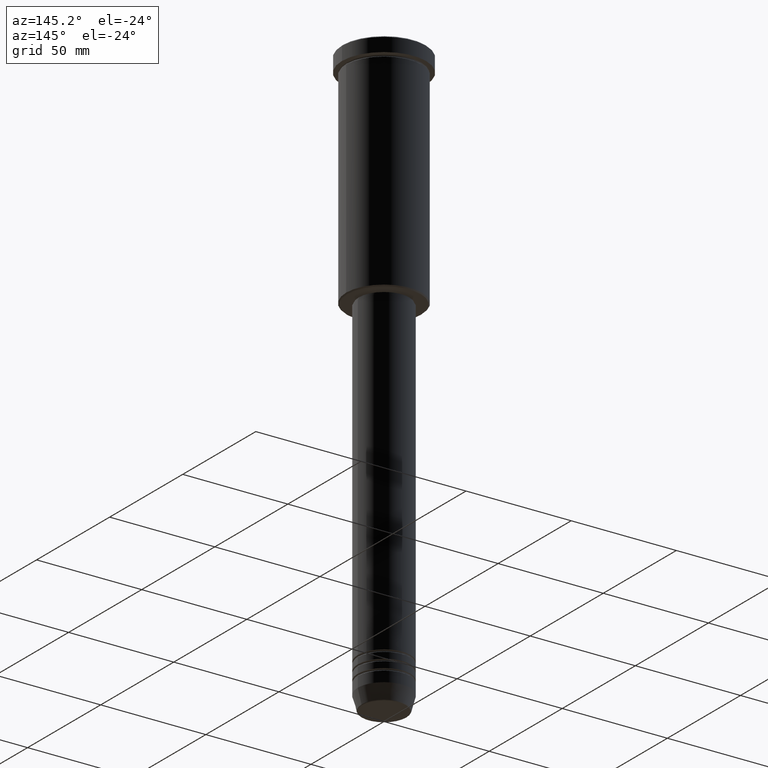
[diagram: clean part render]
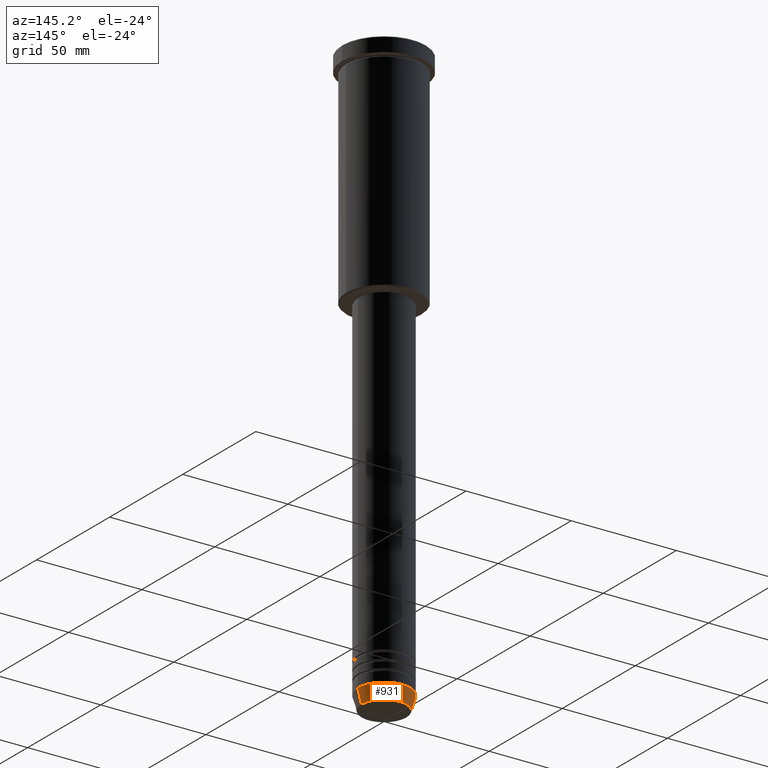
[diagram: same view with one face highlighted and labeled with its STEP entity id]
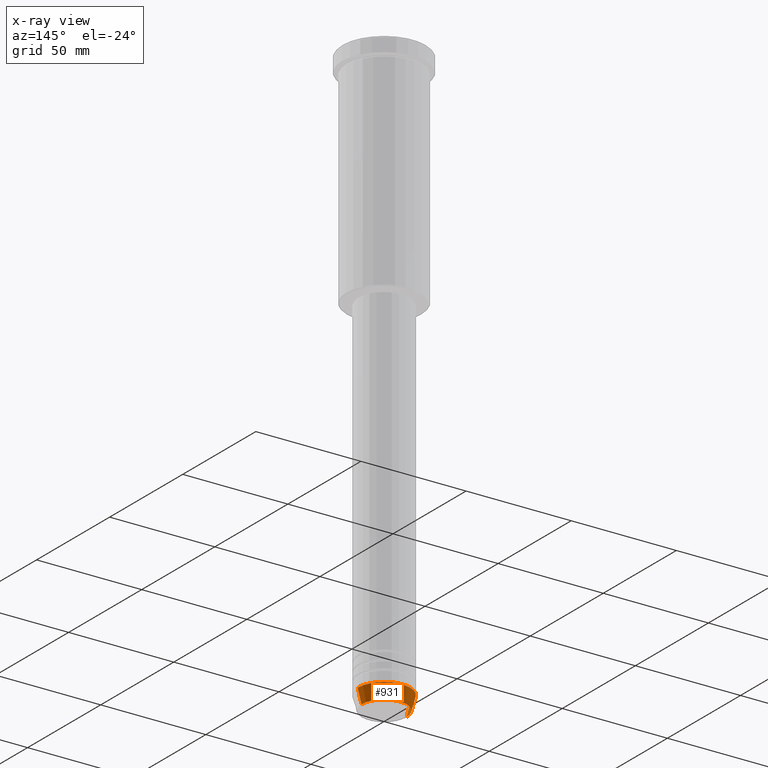
[diagram: x-ray of the same camera — body ghosted, the highlighted face saturated]
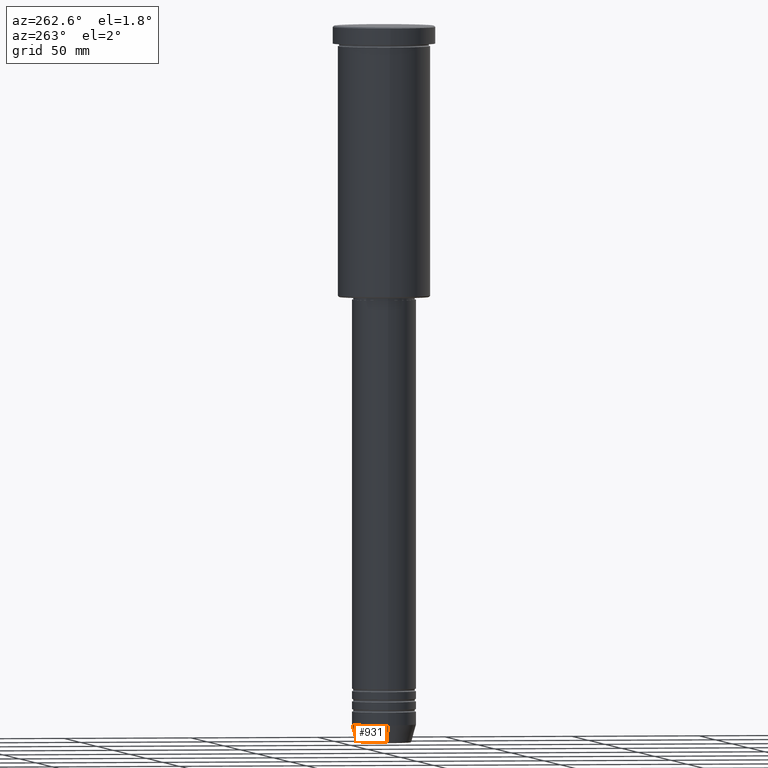
[diagram: same view with one face highlighted and labeled with its STEP entity id]
A machine part, auxiliary view. The second image highlights one B-rep face of the part: STEP entity #931.
The next image is the same camera in x-ray: the body ghosted, the highlighted face saturated — about 0% of this face is hidden behind the body in this view.
A second angle (auxiliary view) of the same face is appended — the face is thin or edge-on in the first view.
In plain terms, the highlighted conical surface has half-angle 15 deg.
Its self-contained STEP definition (entity closure, byte-faithful):
#88 = ORIENTED_EDGE ( 'NONE', *, *, #1113, .T. ) ;
#141 = CARTESIAN_POINT ( 'NONE',  ( 0.000000000000000000, 0.000000000000000000, -273.0000000000000000 ) ) ;
#258 = DIRECTION ( 'NONE',  ( -0.000000000000000000, -0.000000000000000000, 1.000000000000000000 ) ) ;
#259 = DIRECTION ( 'NONE',  ( 1.000000000000000000, 0.000000000000000000, 0.000000000000000000 ) ) ;
#286 = CARTESIAN_POINT ( 'NONE',  ( 10.72365507213719127, 0.000000000000000000, -279.6294095225512706 ) ) ;
#318 = EDGE_LOOP ( 'NONE', ( #897, #88, #364, #375 ) ) ;
#326 = DIRECTION ( 'NONE',  ( -0.000000000000000000, -0.000000000000000000, 1.000000000000000000 ) ) ;
#335 = DIRECTION ( 'NONE',  ( 1.000000000000000000, 0.000000000000000000, 0.000000000000000000 ) ) ;
#337 = CARTESIAN_POINT ( 'NONE',  ( 0.000000000000000000, 0.000000000000000000, -279.6294095225512706 ) ) ;
#364 = ORIENTED_EDGE ( 'NONE', *, *, #912, .F. ) ;
#375 = ORIENTED_EDGE ( 'NONE', *, *, #559, .F. ) ;
#388 = VERTEX_POINT ( 'NONE', #468 ) ;
#399 = DIRECTION ( 'NONE',  ( 0.2588190451025213501, 0.000000000000000000, 0.9659258262890680902 ) ) ;
#468 = CARTESIAN_POINT ( 'NONE',  ( -10.72365507213719127, 1.422038742429750516E-15, -279.6294095225512706 ) ) ;
#472 = AXIS2_PLACEMENT_3D ( 'NONE', #337, #1067, #259 ) ;
#483 = VERTEX_POINT ( 'NONE', #1046 ) ;
#523 = CARTESIAN_POINT ( 'NONE',  ( 0.000000000000000000, 0.000000000000000000, -273.0000000000000000 ) ) ;
#528 = CIRCLE ( 'NONE', #856, 12.50000000000000000 ) ;
#559 = EDGE_CURVE ( 'NONE', #1092, #1034, #579, .T. ) ;
#579 = LINE ( 'NONE', #956, #975 ) ;
#590 = EDGE_CURVE ( 'NONE', #1092, #388, #614, .T. ) ;
#600 = AXIS2_PLACEMENT_3D ( 'NONE', #141, #258, #986 ) ;
#614 = CIRCLE ( 'NONE', #472, 10.72365507213719127 ) ;
#781 = FACE_OUTER_BOUND ( 'NONE', #318, .T. ) ;
#834 = VECTOR ( 'NONE', #903, 1000.000000000000000 ) ;
#856 = AXIS2_PLACEMENT_3D ( 'NONE', #523, #326, #335 ) ;
#897 = ORIENTED_EDGE ( 'NONE', *, *, #590, .T. ) ;
#903 = DIRECTION ( 'NONE',  ( -0.2588190451025213501, 3.169619151431772337E-17, 0.9659258262890680902 ) ) ;
#912 = EDGE_CURVE ( 'NONE', #1034, #483, #528, .T. ) ;
#931 = ADVANCED_FACE ( 'NONE', ( #781 ), #1032, .T. ) ;
#956 = CARTESIAN_POINT ( 'NONE',  ( 12.50000000000000000, 0.000000000000000000, -273.0000000000000000 ) ) ;
#975 = VECTOR ( 'NONE', #399, 1000.000000000000000 ) ;
#986 = DIRECTION ( 'NONE',  ( 1.000000000000000000, 0.000000000000000000, 0.000000000000000000 ) ) ;
#1032 = CONICAL_SURFACE ( 'NONE', #600, 12.50000000000000000, 0.2617993877991500740 ) ;
#1034 = VERTEX_POINT ( 'NONE', #1080 ) ;
#1046 = CARTESIAN_POINT ( 'NONE',  ( -12.50000000000000000, 1.530808498934191521E-15, -273.0000000000000000 ) ) ;
#1067 = DIRECTION ( 'NONE',  ( -0.000000000000000000, -0.000000000000000000, 1.000000000000000000 ) ) ;
#1075 = CARTESIAN_POINT ( 'NONE',  ( -12.50000000000000000, 1.530808498934191521E-15, -273.0000000000000000 ) ) ;
#1080 = CARTESIAN_POINT ( 'NONE',  ( 12.50000000000000000, 0.000000000000000000, -273.0000000000000000 ) ) ;
#1091 = LINE ( 'NONE', #1075, #834 ) ;
#1092 = VERTEX_POINT ( 'NONE', #286 ) ;
#1113 = EDGE_CURVE ( 'NONE', #388, #483, #1091, .T. ) ;